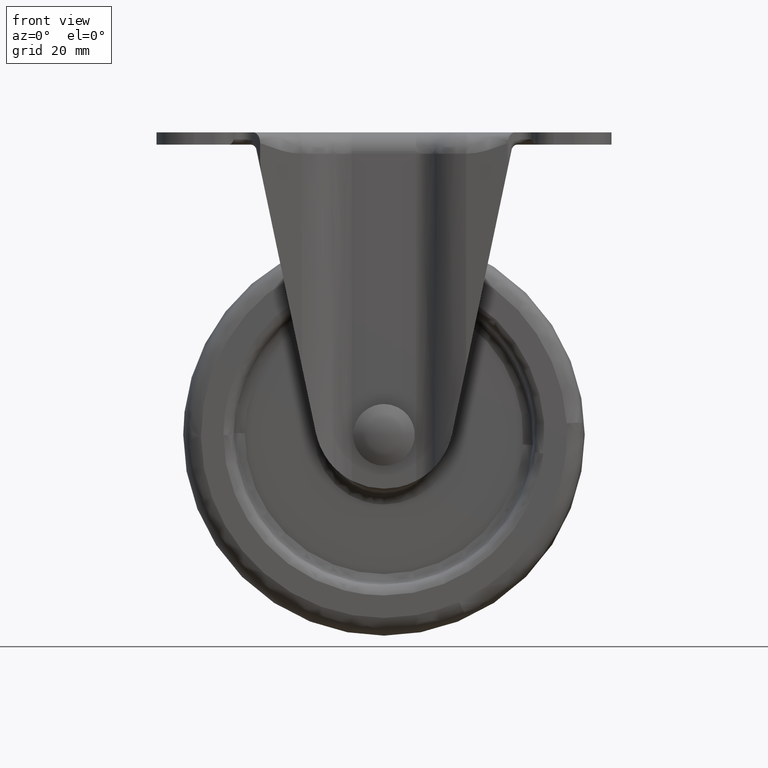
[diagram: clean part render]
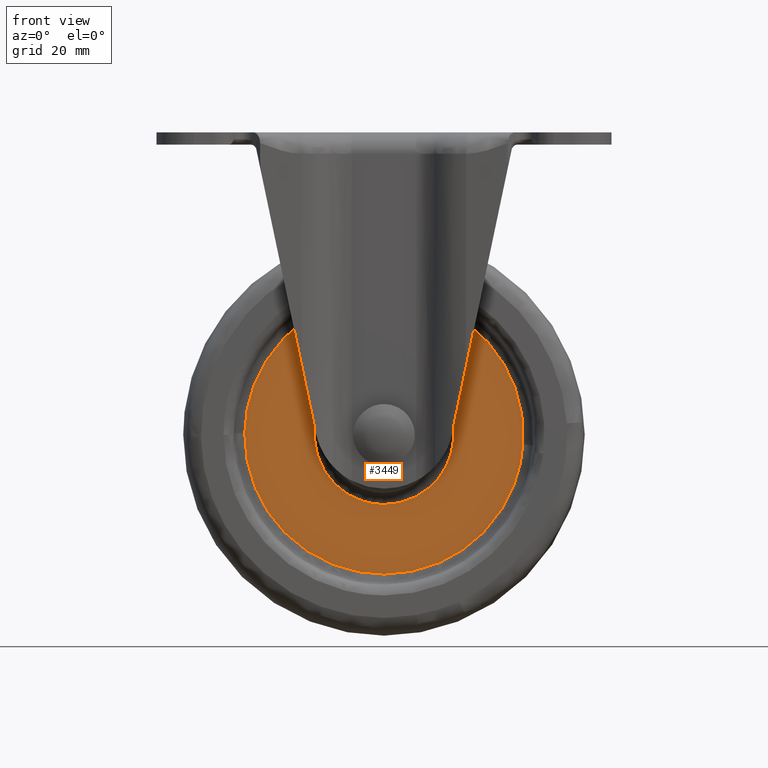
[diagram: same view with one face highlighted and labeled with its STEP entity id]
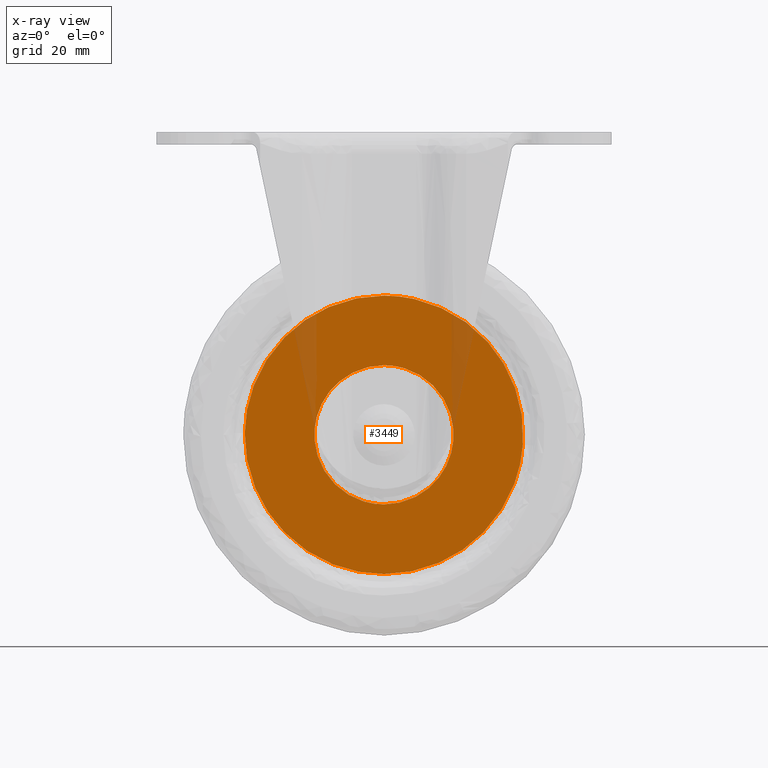
[diagram: x-ray of the same camera — body ghosted, the highlighted face saturated]
A machine part, front view. The second image highlights one B-rep face of the part: STEP entity #3449.
The next image is the same camera in x-ray: the body ghosted, the highlighted face saturated — about 6% of this face is hidden behind the body in this view.
In plain terms, the highlighted face is a freeform B-spline surface patch.
Its self-contained STEP definition (entity closure, byte-faithful):
#1758=CARTESIAN_POINT('',(-12.960648777096960,-7.500000000000000,-57.479065893796367));
#1759=VERTEX_POINT('',#1758);
#1773=CARTESIAN_POINT('',(0.0,-7.500000000000000,-69.497576187667050));
#1774=VERTEX_POINT('',#1773);
#1775=CARTESIAN_POINT('',(-12.960648777096962,-7.500000000000000,-57.479065893796367));
#1776=CARTESIAN_POINT('',(-12.052753368311773,-7.500000000000000,-69.497576187667065));
#1777=CARTESIAN_POINT('',(0.0,-7.500000000000000,-69.497576187667050));
#1785=(BOUNDED_CURVE()B_SPLINE_CURVE(2,(#1775,#1776,#1777),.UNSPECIFIED.,.F.,.U.)B_SPLINE_CURVE_WITH_KNOTS((3,3),(0.763129840737453,1.0),.UNSPECIFIED.)CURVE()GEOMETRIC_REPRESENTATION_ITEM()RATIONAL_B_SPLINE_CURVE((0.970850634527635,0.722489346450951,1.0))REPRESENTATION_ITEM(''));
#1786=EDGE_CURVE('',#1759,#1774,#1785,.T.);
#1788=CARTESIAN_POINT('',(12.960648777096960,-7.500000000000000,-55.520934106203633));
#1789=VERTEX_POINT('',#1788);
#1790=CARTESIAN_POINT('',(0.0,-7.500000000000000,-69.497576187667050));
#1791=CARTESIAN_POINT('',(12.997576187667059,-7.500000000000000,-69.497576187667036));
#1792=CARTESIAN_POINT('',(12.997576187667059,-7.500000000000000,-56.500000000000000));
#1793=CARTESIAN_POINT('',(12.997576187667056,-7.499999999999999,-56.009770657868032));
#1794=CARTESIAN_POINT('',(12.960648777096958,-7.500000000000001,-55.520934106203633));
#1802=(BOUNDED_CURVE()B_SPLINE_CURVE(2,(#1790,#1791,#1792,#1793,#1794),.UNSPECIFIED.,.F.,.U.)B_SPLINE_CURVE_WITH_KNOTS((3,2,3),(0.0,0.250000000000000,0.263129840737453),.UNSPECIFIED.)CURVE()GEOMETRIC_REPRESENTATION_ITEM()RATIONAL_B_SPLINE_CURVE((1.0,0.707106781186548,1.0,0.984617434735597,0.970850634527635))REPRESENTATION_ITEM(''));
#1803=EDGE_CURVE('',#1774,#1789,#1802,.T.);
#1849=CARTESIAN_POINT('',(0.0,-7.500000000000000,-43.502423812332943));
#1850=VERTEX_POINT('',#1849);
#1851=CARTESIAN_POINT('',(12.960648777096962,-7.500000000000000,-55.520934106203619));
#1852=CARTESIAN_POINT('',(12.052753368311775,-7.499999999999998,-43.502423812332950));
#1853=CARTESIAN_POINT('',(0.0,-7.500000000000000,-43.502423812332943));
#1861=(BOUNDED_CURVE()B_SPLINE_CURVE(2,(#1851,#1852,#1853),.UNSPECIFIED.,.F.,.U.)B_SPLINE_CURVE_WITH_KNOTS((3,3),(0.263129840737453,0.500000000000000),.UNSPECIFIED.)CURVE()GEOMETRIC_REPRESENTATION_ITEM()RATIONAL_B_SPLINE_CURVE((0.970850634527635,0.722489346450951,1.0))REPRESENTATION_ITEM(''));
#1862=EDGE_CURVE('',#1789,#1850,#1861,.T.);
#1864=CARTESIAN_POINT('',(0.0,-7.500000000000000,-43.502423812332943));
#1865=CARTESIAN_POINT('',(-12.997576187667059,-7.500000000000000,-43.502423812332943));
#1866=CARTESIAN_POINT('',(-12.997576187667059,-7.500000000000000,-56.500000000000000));
#1867=CARTESIAN_POINT('',(-12.997576187667057,-7.500000000000000,-56.990229342131947));
#1868=CARTESIAN_POINT('',(-12.960648777096962,-7.500000000000000,-57.479065893796381));
#1876=(BOUNDED_CURVE()B_SPLINE_CURVE(2,(#1864,#1865,#1866,#1867,#1868),.UNSPECIFIED.,.F.,.U.)B_SPLINE_CURVE_WITH_KNOTS((3,2,3),(0.500000000000000,0.750000000000000,0.763129840737453),.UNSPECIFIED.)CURVE()GEOMETRIC_REPRESENTATION_ITEM()RATIONAL_B_SPLINE_CURVE((1.0,0.707106781186548,1.0,0.984617434735598,0.970850634527636))REPRESENTATION_ITEM(''));
#1877=EDGE_CURVE('',#1850,#1759,#1876,.T.);
#1913=CARTESIAN_POINT('',(25.936707522649211,-7.500000000000001,-58.313064541170696));
#1914=VERTEX_POINT('',#1913);
#1915=CARTESIAN_POINT('',(0.0,-7.500000000000000,-30.500000000000000));
#1916=VERTEX_POINT('',#1915);
#1917=CARTESIAN_POINT('',(25.936707522649211,-7.500000000000001,-58.313064541170696));
#1918=CARTESIAN_POINT('',(26.0,-7.500000000000001,-57.407637012756105));
#1919=CARTESIAN_POINT('',(26.0,-7.500000000000000,-56.500000000000000));
#1920=CARTESIAN_POINT('',(26.000000000000007,-7.500000000000000,-30.500000000000004));
#1921=CARTESIAN_POINT('',(0.0,-7.500000000000000,-30.500000000000000));
#1929=(BOUNDED_CURVE()B_SPLINE_CURVE(2,(#1917,#1918,#1919,#1920,#1921),.UNSPECIFIED.,.F.,.U.)B_SPLINE_CURVE_WITH_KNOTS((3,2,3),(0.237833686534955,0.250000000000000,0.500000000000000),.UNSPECIFIED.)CURVE()GEOMETRIC_REPRESENTATION_ITEM()RATIONAL_B_SPLINE_CURVE((0.972879876386686,0.985746277152518,1.0,0.707106781186547,1.0))REPRESENTATION_ITEM(''));
#1930=EDGE_CURVE('',#1914,#1916,#1929,.T.);
#1949=CARTESIAN_POINT('',(-25.997947169781860,-7.500000000000000,-56.173282961977009));
#1950=VERTEX_POINT('',#1949);
#1964=CARTESIAN_POINT('',(0.0,-7.500000000000000,-30.500000000000000));
#1965=CARTESIAN_POINT('',(-25.675310176013109,-7.500000000000000,-30.499999999999996));
#1966=CARTESIAN_POINT('',(-25.997947169781860,-7.500000000000000,-56.173282961977009));
#1974=(BOUNDED_CURVE()B_SPLINE_CURVE(2,(#1964,#1965,#1966),.UNSPECIFIED.,.F.,.U.)B_SPLINE_CURVE_WITH_KNOTS((3,3),(0.500000000000000,0.747784295910927),.UNSPECIFIED.)CURVE()GEOMETRIC_REPRESENTATION_ITEM()RATIONAL_B_SPLINE_CURVE((1.0,0.709702639996895,0.994854295619151))REPRESENTATION_ITEM(''));
#1975=EDGE_CURVE('',#1916,#1950,#1974,.T.);
#2003=CARTESIAN_POINT('',(0.0,-7.500000000000000,-82.500000000000000));
#2004=VERTEX_POINT('',#2003);
#2005=CARTESIAN_POINT('',(0.0,-7.500000000000000,-82.500000000000000));
#2006=CARTESIAN_POINT('',(24.245958028906674,-7.499999999999999,-82.500000000000000));
#2007=CARTESIAN_POINT('',(25.936707522649208,-7.500000000000001,-58.313064541170711));
#2015=(BOUNDED_CURVE()B_SPLINE_CURVE(2,(#2005,#2006,#2007),.UNSPECIFIED.,.F.,.U.)B_SPLINE_CURVE_WITH_KNOTS((3,3),(0.0,0.237833686534955),.UNSPECIFIED.)CURVE()GEOMETRIC_REPRESENTATION_ITEM()RATIONAL_B_SPLINE_CURVE((1.0,0.721360504034030,0.972879876386686))REPRESENTATION_ITEM(''));
#2016=EDGE_CURVE('',#2004,#1914,#2015,.T.);
#2018=CARTESIAN_POINT('',(-25.997947169781863,-7.500000000000000,-56.173282961977009));
#2019=CARTESIAN_POINT('',(-25.999999999999996,-7.500000000000000,-56.336635031412463));
#2020=CARTESIAN_POINT('',(-26.0,-7.500000000000000,-56.500000000000000));
#2021=CARTESIAN_POINT('',(-26.000000000000007,-7.500000000000000,-82.500000000000014));
#2022=CARTESIAN_POINT('',(0.0,-7.500000000000000,-82.500000000000000));
#2030=(BOUNDED_CURVE()B_SPLINE_CURVE(2,(#2018,#2019,#2020,#2021,#2022),.UNSPECIFIED.,.F.,.U.)B_SPLINE_CURVE_WITH_KNOTS((3,2,3),(0.747784295910928,0.750000000000000,1.0),.UNSPECIFIED.)CURVE()GEOMETRIC_REPRESENTATION_ITEM()RATIONAL_B_SPLINE_CURVE((0.994854295619154,0.997404141189654,1.0,0.707106781186547,1.0))REPRESENTATION_ITEM(''));
#2031=EDGE_CURVE('',#1950,#2004,#2030,.T.);
#3432=CARTESIAN_POINT('',(-28.595096900212031,-7.500000000000000,-85.097399899213912));
#3433=CARTESIAN_POINT('',(-28.595096900212031,-7.500000000000000,-27.902598706037409));
#3434=CARTESIAN_POINT('',(28.594185334398180,-7.500000000000000,-85.097399899213912));
#3435=CARTESIAN_POINT('',(28.594185334398180,-7.500000000000000,-27.902598706037409));
#3436=B_SPLINE_SURFACE_WITH_KNOTS('',1,1,((#3432,#3434),(#3433,#3435)),.UNSPECIFIED.,.F.,.F.,.U.,(2,2),(2,2),(0.0,57.194801193176502),(0.0,57.189282234610197),.UNSPECIFIED.);
#3437=ORIENTED_EDGE('',*,*,#2016,.T.);
#3438=ORIENTED_EDGE('',*,*,#1930,.T.);
#3439=ORIENTED_EDGE('',*,*,#1975,.T.);
#3440=ORIENTED_EDGE('',*,*,#2031,.T.);
#3441=EDGE_LOOP('',(#3437,#3438,#3439,#3440));
#3442=FACE_OUTER_BOUND('',#3441,.T.);
#3443=ORIENTED_EDGE('',*,*,#1803,.F.);
#3444=ORIENTED_EDGE('',*,*,#1786,.F.);
#3445=ORIENTED_EDGE('',*,*,#1877,.F.);
#3446=ORIENTED_EDGE('',*,*,#1862,.F.);
#3447=EDGE_LOOP('',(#3443,#3444,#3445,#3446));
#3448=FACE_BOUND('',#3447,.T.);
#3449=ADVANCED_FACE('',(#3442,#3448),#3436,.F.);